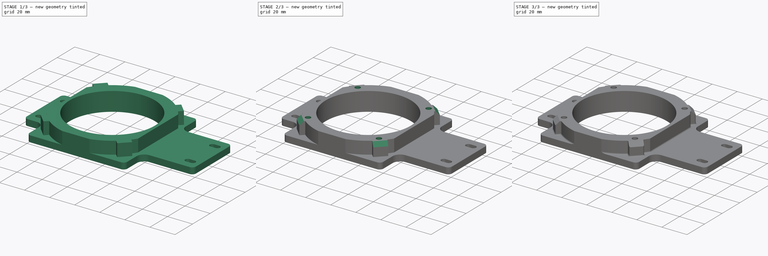
[diagram: build sequence overview — one tinted view per stage of 3, left to right]
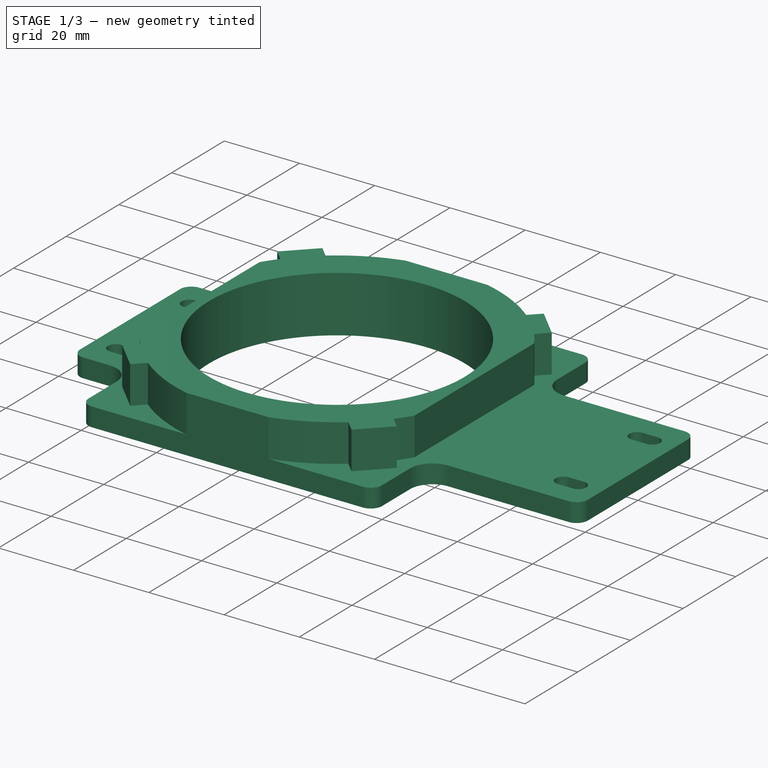
[diagram: stage 1 of 3 — iso view after this stage's code; geometry added in this stage tinted green]
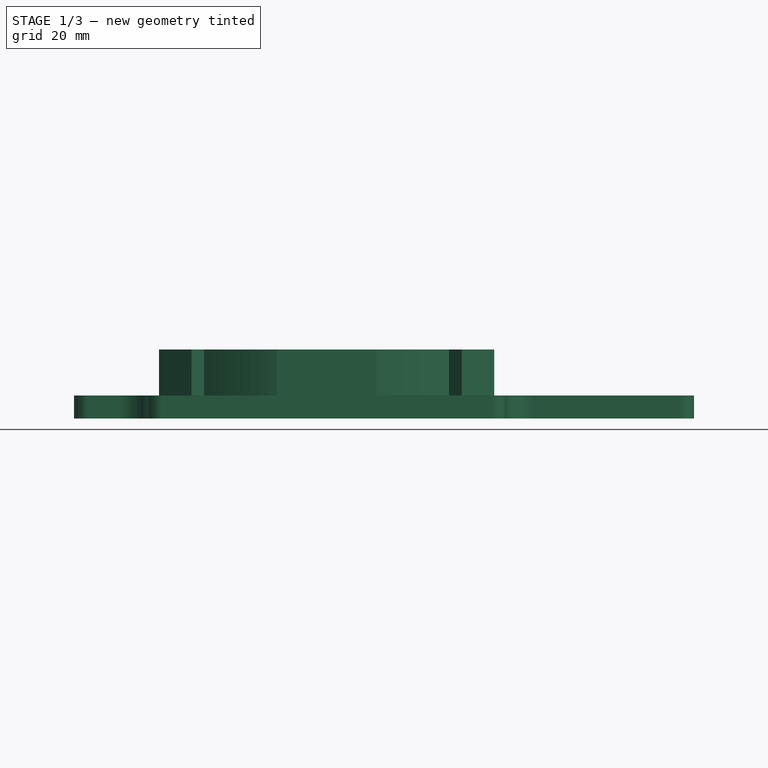
[diagram: stage 1 of 3 — front view after this stage's code; geometry added in this stage tinted green]
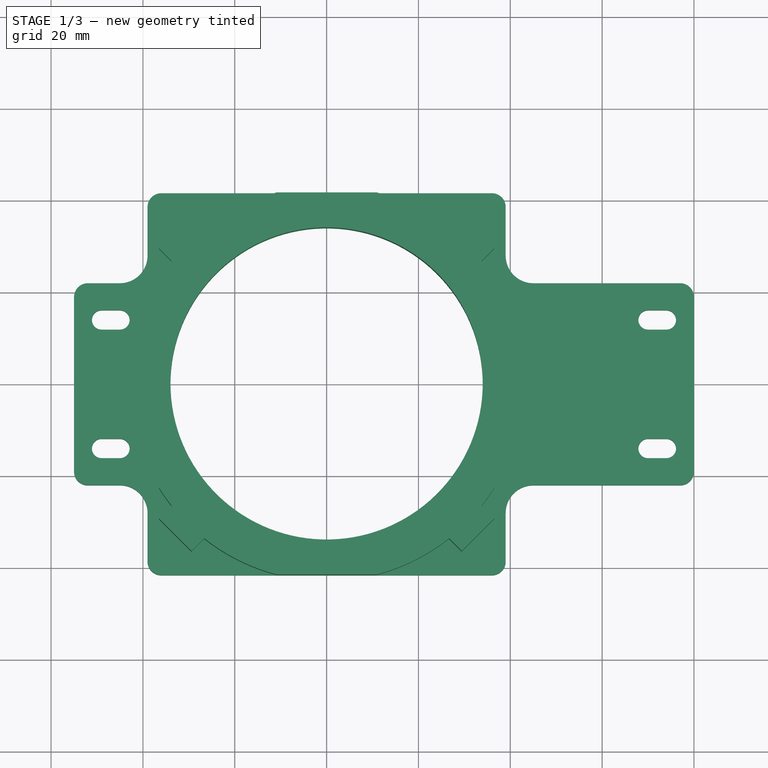
[diagram: stage 1 of 3 — top view after this stage's code; geometry added in this stage tinted green]
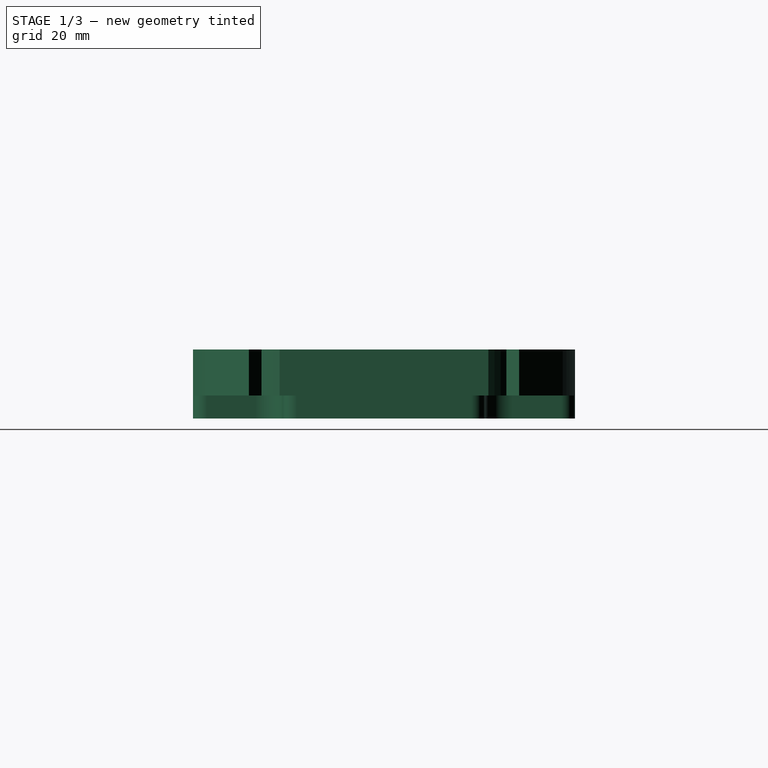
[diagram: stage 1 of 3 — right view after this stage's code; geometry added in this stage tinted green]
FCSTD DOCUMENT  (FreeCAD 0.17R5235 (Git shallow))
Label: C1010-3
License: CreativeCommons Attribution-ShareAlike
LicenseURL: http://creativecommons.org/licenses/by-sa/4.0/
objects: Sketcher::SketchObject×4, PartDesign::Pad×2, PartDesign::Pocket×2, PartDesign::Fillet×2, PartDesign::Chamfer×1, PartDesign::Plane×1, PartDesign::Body×1
note: 17 computed .brp shape members not serialized (recipe doc carries the construction recipe); baked Part::Feature solids carry a one-line shape summary decoded from their .brp

FEATURE [Sketcher::SketchObject] Sketch
  LastGeoID = 69
  MapMode = 5
  Support = -> [XY_Plane]
  sketch-geometry (61):
    g0: LineSegment StartX=-36 StartY=-41.6 StartZ=0 EndX=36 EndY=-41.6 EndZ=0
    g1: LineSegment StartX=45 StartY=-22 StartZ=0 EndX=77 EndY=-22 EndZ=0
    g2: LineSegment StartX=80 StartY=-19 StartZ=0 EndX=80 EndY=19 EndZ=0
    g3: LineSegment StartX=36 StartY=41.6 StartZ=0 EndX=-36 EndY=41.6 EndZ=0
    g4: LineSegment StartX=-55 StartY=-19 StartZ=0 EndX=-55 EndY=19 EndZ=0
    g5: Circle CenterX=0 CenterY=0 CenterZ=0 NormalX=0 NormalY=0 NormalZ=1 AngleXU=0 Radius=34
    g6: ArcOfCircle CenterX=45 CenterY=28 CenterZ=0 NormalX=0 NormalY=0 NormalZ=1 AngleXU=0 Radius=6 StartAngle=3.14159 EndAngle=4.71239
    g7: ArcOfCircle CenterX=36 CenterY=38.6 CenterZ=0 NormalX=0 NormalY=0 NormalZ=1 AngleXU=0 Radius=3 StartAngle=0 EndAngle=1.5708
    g8: LineSegment StartX=39 StartY=38.6 StartZ=0 EndX=39 EndY=28 EndZ=0
    g9: LineSegment StartX=45 StartY=22 StartZ=0 EndX=77 EndY=22 EndZ=0
    g10: ArcOfCircle CenterX=77 CenterY=19 CenterZ=0 NormalX=0 NormalY=0 NormalZ=1 AngleXU=0 Radius=3 StartAngle=0 EndAngle=1.5708
    g11: ArcOfCircle CenterX=77 CenterY=-19 CenterZ=0 NormalX=0 NormalY=0 NormalZ=1 AngleXU=0 Radius=3 StartAngle=4.71239 EndAngle=6.28319
    g12: LineSegment StartX=39 StartY=-28 StartZ=0 EndX=39 EndY=-38.6 EndZ=0
    g13: ArcOfCircle CenterX=45 CenterY=-28 CenterZ=0 NormalX=0 NormalY=0 NormalZ=1 AngleXU=0 Radius=6 StartAngle=1.5708 EndAngle=3.14159
    g14: ArcOfCircle CenterX=36 CenterY=-38.6 CenterZ=0 NormalX=0 NormalY=0 NormalZ=1 AngleXU=0 Radius=3 StartAngle=4.71239 EndAngle=6.28319
    g15: LineSegment StartX=-39 StartY=-38.6 StartZ=0 EndX=-39 EndY=-28 EndZ=0
    g16: LineSegment StartX=-52 StartY=-22 StartZ=0 EndX=-45 EndY=-22 EndZ=0
    g17: LineSegment StartX=-52 StartY=22 StartZ=0 EndX=-45 EndY=22 EndZ=0
    g18: LineSegment StartX=-39 StartY=38.6 StartZ=0 EndX=-39 EndY=28 EndZ=0
    g19: ArcOfCircle CenterX=-45 CenterY=28 CenterZ=0 NormalX=0 NormalY=0 NormalZ=1 AngleXU=0 Radius=6 StartAngle=4.71239 EndAngle=6.28319
    g20: ArcOfCircle CenterX=-52 CenterY=19 CenterZ=0 NormalX=0 NormalY=0 NormalZ=1 AngleXU=0 Radius=3 StartAngle=1.5708 EndAngle=3.14159
    g21: ArcOfCircle CenterX=-52 CenterY=-19 CenterZ=0 NormalX=0 NormalY=0 NormalZ=1 AngleXU=0 Radius=3 StartAngle=3.14159 EndAngle=4.71239
    g22: ArcOfCircle CenterX=-45 CenterY=-28 CenterZ=0 NormalX=0 NormalY=0 NormalZ=1 AngleXU=0 Radius=6 StartAngle=0 EndAngle=1.5708
    g23: ArcOfCircle CenterX=-36 CenterY=-38.6 CenterZ=0 NormalX=0 NormalY=0 NormalZ=1 AngleXU=0 Radius=3 StartAngle=3.14159 EndAngle=4.71239
    g24: ArcOfCircle CenterX=-36 CenterY=38.6 CenterZ=0 NormalX=0 NormalY=0 NormalZ=1 AngleXU=0 Radius=3 StartAngle=1.5708 EndAngle=3.14159
    g25: Circle [constr] CenterX=0 CenterY=0 CenterZ=0 NormalX=0 NormalY=0 NormalZ=1 AngleXU=0 Radius=37.5
    g26: LineSegment [constr] StartX=37.5 StartY=18 StartZ=0 EndX=57 EndY=18 EndZ=0
    g27: LineSegment [constr] StartX=57 StartY=18 StartZ=0 EndX=57 EndY=-18 EndZ=0
    g28: LineSegment [constr] StartX=57 StartY=-18 StartZ=0 EndX=37.5 EndY=-18 EndZ=0
    g29: LineSegment [constr] StartX=37.5 StartY=-18 StartZ=0 EndX=37.5 EndY=18 EndZ=0
    g30: LineSegment [constr] StartX=47.25 StartY=18 StartZ=0 EndX=47.25 EndY=-18 EndZ=0
    g31: LineSegment [constr] StartX=-38.25 StartY=58.4 StartZ=0 EndX=61.75 EndY=58.4 EndZ=0
    g32: LineSegment [constr] StartX=61.75 StartY=58.4 StartZ=0 EndX=61.75 EndY=-41.6 EndZ=0
    g33: LineSegment [constr] StartX=61.75 StartY=-41.6 StartZ=0 EndX=-38.25 EndY=-41.6 EndZ=0
    g34: LineSegment [constr] StartX=-38.25 StartY=-41.6 StartZ=0 EndX=-38.25 EndY=58.4 EndZ=0
    g35: LineSegment [constr] StartX=61.75 StartY=58.4 StartZ=0 EndX=81.75 EndY=58.4 EndZ=0
    g36: LineSegment [constr] StartX=81.75 StartY=58.4 StartZ=0 EndX=81.75 EndY=-41.6 EndZ=0
    g37: LineSegment [constr] StartX=81.75 StartY=-41.6 StartZ=0 EndX=61.75 EndY=-41.6 EndZ=0
    g38: LineSegment [constr] StartX=61.75 StartY=-41.6 StartZ=0 EndX=61.75 EndY=58.4 EndZ=0
    g39: LineSegment [constr] StartX=-38.25 StartY=58.4 StartZ=0 EndX=-58.25 EndY=58.4 EndZ=0
    g40: LineSegment [constr] StartX=-58.25 StartY=58.4 StartZ=0 EndX=-58.25 EndY=-41.6 EndZ=0
    g41: LineSegment [constr] StartX=-58.25 StartY=-41.6 StartZ=0 EndX=-38.25 EndY=-41.6 EndZ=0
    g42: LineSegment [constr] StartX=-38.25 StartY=-41.6 StartZ=0 EndX=-38.25 EndY=58.4 EndZ=0
    g43: LineSegment [constr] StartX=-48.25 StartY=58.4 StartZ=0 EndX=-48.25 EndY=-41.6 EndZ=0
    g44: LineSegment [constr] StartX=71.75 StartY=58.4 StartZ=0 EndX=71.75 EndY=-41.6 EndZ=0
    g45: ArcOfCircle CenterX=74 CenterY=14 CenterZ=0 NormalX=0 NormalY=0 NormalZ=1 AngleXU=0 Radius=2.1 StartAngle=4.71239 EndAngle=7.85398
    g46: ArcOfCircle CenterX=70 CenterY=14 CenterZ=0 NormalX=0 NormalY=0 NormalZ=1 AngleXU=0 Radius=2.1 StartAngle=1.5708 EndAngle=4.71239
    g47: LineSegment StartX=74 StartY=16.1 StartZ=0 EndX=70 EndY=16.1 EndZ=0
    g48: LineSegment StartX=74 StartY=11.9 StartZ=0 EndX=70 EndY=11.9 EndZ=0
    g49: ArcOfCircle CenterX=74 CenterY=-14 CenterZ=0 NormalX=0 NormalY=0 NormalZ=1 AngleXU=0 Radius=2.1 StartAngle=4.71239 EndAngle=7.85398
    g50: ArcOfCircle CenterX=70 CenterY=-14 CenterZ=0 NormalX=0 NormalY=0 NormalZ=1 AngleXU=0 Radius=2.1 StartAngle=1.5708 EndAngle=4.71239
    g51: LineSegment StartX=74 StartY=-11.9 StartZ=0 EndX=70 EndY=-11.9 EndZ=0
    g52: LineSegment StartX=74 StartY=-16.1 StartZ=0 EndX=70 EndY=-16.1 EndZ=0
    g53: ArcOfCircle CenterX=-49 CenterY=14 CenterZ=0 NormalX=0 NormalY=0 NormalZ=1 AngleXU=0 Radius=2.1 StartAngle=1.5708 EndAngle=4.71239
    g54: ArcOfCircle CenterX=-45 CenterY=14 CenterZ=0 NormalX=0 NormalY=0 NormalZ=1 AngleXU=0 Radius=2.1 StartAngle=4.71239 EndAngle=7.85398
    g55: LineSegment StartX=-49 StartY=11.9 StartZ=0 EndX=-45 EndY=11.9 EndZ=0
    g56: LineSegment StartX=-49 StartY=16.1 StartZ=0 EndX=-45 EndY=16.1 EndZ=0
    g57: ArcOfCircle CenterX=-49 CenterY=-14 CenterZ=0 NormalX=0 NormalY=0 NormalZ=1 AngleXU=0 Radius=2.1 StartAngle=1.5708 EndAngle=4.71239
    g58: ArcOfCircle CenterX=-45 CenterY=-14 CenterZ=0 NormalX=0 NormalY=0 NormalZ=1 AngleXU=0 Radius=2.1 StartAngle=4.71239 EndAngle=7.85398
    g59: LineSegment StartX=-49 StartY=-16.1 StartZ=0 EndX=-45 EndY=-16.1 EndZ=0
    g60: LineSegment StartX=-49 StartY=-11.9 StartZ=0 EndX=-45 EndY=-11.9 EndZ=0
  constraints (159):
    c: Horizontal(g0)
    c: Horizontal(g1)
    c: Vertical(g2)
    c: Vertical(g4)
    c: Coincident(g5,g-1)
    c: Radius(g5) = 34
    c: Equal(g2,g4)
    c: Tangent(g3,g7) = -1.5708
    c: Horizontal(g9)
    c: Tangent(g1,g11) = -1.5708
    c: Tangent(g2,g11) = -1.5708
    c: Vertical(g12)
    c: Tangent(g1,g13) = 1.5708
    c: Tangent(g12,g13) = -1.5708
    c: Tangent(g0,g14) = -1.5708
    c: Tangent(g12,g14) = 1.5708
    c: Horizontal(g16)
    c: Vertical(g18)
    c: Horizontal(g17)
    c: Tangent(g17,g19) = -1.5708
    c: Tangent(g18,g19) = 1.5708
    c: Tangent(g4,g20) = 1.5708
    c: Tangent(g17,g20) = 1.5708
    c: Vertical(g15)
    c: Tangent(g4,g21) = 1.5708
    c: Tangent(g16,g21) = -1.5708
    c: Tangent(g16,g22) = 1.5708
    c: Tangent(g15,g22) = -1.5708
    c: Tangent(g0,g23) = -1.5708
    c: Tangent(g15,g23) = 1.5708
    c: Tangent(g3,g24) = -1.5708
    c: Tangent(g18,g24) = -1.5708
    c: Tangent(g7,g8) = 1.5708
    c: Vertical(g8)
    c: Tangent(g8,g6) = -1.5708
    c: Tangent(g6,g9) = -1.5708
    c: Tangent(g10,g9) = 1.5708
    c: Tangent(g10,g2) = -1.5708
    c: Equal(g11,g10)
    c: Equal(g10,g20)
    c: Equal(g20,g21)
    c: Equal(g21,g24)
    c: Equal(g24,g7)
    c: Equal(g7,g14)
    c: Equal(g14,g23)
    c: Horizontal(g3)
    c: Radius(g21) = 3
    c: Equal(g22,g19)
    c: Equal(g19,g6)
    c: Radius(g6) = 6
    c: DistanceX(g4,g2) = 135
    c: Symmetric(g3,g0,g-1)
    c: Equal(g16,g17)
    c: PointOnObject(g6,g17)
    c: Symmetric(g1,g6,g-1)
    c: Symmetric(g15,g12,g-2)
    c: DistanceY(g16,g17) = 44
    c: Radius(g25) = 37.5
    c: Coincident(g26,g27)
    c: Coincident(g27,g28)
    c: Coincident(g28,g29)
    c: Coincident(g29,g26)
    c: Horizontal(g26)
    c: Horizontal(g28)
    c: Vertical(g27)
    c: Vertical(g29)
    c: Coincident(g25,g-1)
    c: DistanceX(g28,g27) = 19.5
    c: DistanceY(g27,g27) = 36
    c: Symmetric(g26,g27,g-1)
    c: PointOnObject(g30,g26)
    c: Vertical(g30)
    c: PointOnObject(g30,g28)
    c: Symmetric(g26,g26,g30)
    c: Coincident(g31,g32)
    c: Coincident(g32,g33)
    c: Coincident(g33,g34)
    c: Coincident(g34,g31)
    c: Horizontal(g31)
    c: Horizontal(g33)
    c: Vertical(g32)
    c: Vertical(g34)
    c: DistanceX(g33,g33) = 100
    c: DistanceX(g30,g32) = 14.5
    c: PointOnObject(g33,g0)
    c: Equal(g34,g31)
    c: Coincident(g35,g36)
    c: Coincident(g36,g37)
    c: Coincident(g37,g38)
    c: Coincident(g38,g35)
    c: Horizontal(g35)
    c: Horizontal(g37)
    c: Vertical(g36)
    c: Vertical(g38)
    c: Coincident(g35,g31)
    c: Coincident(g37,g32)
    c: DistanceX(g35,g35) = 20
    c: Coincident(g39,g40)
    c: Coincident(g40,g41)
    c: Coincident(g41,g42)
    c: Coincident(g42,g39)
    c: Horizontal(g39)
    c: Horizontal(g41)
    c: Vertical(g40)
    c: Vertical(g42)
    c: Coincident(g39,g31)
    c: Coincident(g41,g33)
    c: Equal(g39,g35)
    c: PointOnObject(g43,g39)
    c: Vertical(g43)
    c: PointOnObject(g43,g41)
    c: Symmetric(g33,g40,g43)
    c: PointOnObject(g44,g35)
    c: PointOnObject(g44,g37)
    c: Vertical(g44)
    c: Symmetric(g36,g32,g44)
    c: DistanceX(g15,g12) = 78
    c: DistanceX(g4,g-1) = 55
    c: Tangent(g45,g48) = 1.5708
    c: Tangent(g45,g47) = -1.5708
    c: Tangent(g47,g46) = -1.5708
    c: Tangent(g48,g46) = 1.5708
    c: Horizontal(g47)
    c: Equal(g45,g46)
    c: Tangent(g49,g52) = 1.5708
    c: Tangent(g49,g51) = -1.5708
    c: Tangent(g51,g50) = -1.5708
    c: Tangent(g52,g50) = 1.5708
    c: Horizontal(g51)
    c: Equal(g49,g50)
    c: Equal(g45,g49)
    c: Radius(g49) = 2.1
    c: Equal(g51,g48)
    c: DistanceX(g50,g49) = 4
    c: DistanceY(g45,g9) = 8
    c: Symmetric(g49,g45,g-1)
    c: DistanceX(g-1,g30) = 47.25
    c: DistanceX(g45,g2) = 6
    c: Tangent(g53,g56) = 1.5708
    c: Tangent(g53,g55) = -1.5708
    c: Tangent(g55,g54) = -1.5708
    c: Tangent(g56,g54) = 1.5708
    c: Horizontal(g55)
    c: Equal(g53,g54)
    c: Equal(g56,g51)
    c: Equal(g54,g49)
    c: PointOnObject(g46,g56)
    c: DistanceX(g4,g53) = 6
    c: Tangent(g57,g60) = 1.5708
    c: Tangent(g57,g59) = -1.5708
    c: Tangent(g59,g58) = -1.5708
    c: Tangent(g60,g58) = 1.5708
    c: Horizontal(g59)
    c: Equal(g57,g58)
    c: Equal(g58,g54)
    c: Equal(g60,g55)
    c: Vertical(g57,g53)
    c: PointOnObject(g50,g60)
    c: DistanceY(g36,g27) = 23.6
FEATURE [PartDesign::Pad] Pad
  ClaimChildren = false
  Length = 5
  Length2 = 100
  Profile = -> Sketch
  Reversed = true
  Type = 0
FEATURE [Sketcher::SketchObject] Sketch001
  ExternalGeometry = -> [Sketch]
  LastGeoID = 159
  MapMode = 5
  Support = -> [XY_Plane]
  sketch-geometry (29):
    g0: Circle CenterX=0 CenterY=0 CenterZ=0 NormalX=0 NormalY=0 NormalZ=1 AngleXU=0 Radius=34
    g1: LineSegment StartX=-36.5 StartY=22.7321 StartZ=0 EndX=-36.5 EndY=-22.7321 EndZ=0
    g2: LineSegment StartX=-10.883 StartY=-41.6 StartZ=0 EndX=10.883 EndY=-41.6 EndZ=0
    g3: LineSegment StartX=-36.5 StartY=-29.4289 StartZ=0 EndX=-33.7349 EndY=-26.6638 EndZ=0
    g4: LineSegment StartX=-36.5 StartY=-29.4289 StartZ=0 EndX=-29.4289 EndY=-36.5 EndZ=0
    g5: LineSegment StartX=-29.4289 StartY=-36.5 StartZ=0 EndX=-26.6638 EndY=-33.7349 EndZ=0
    g6: ArcOfCircle CenterX=0 CenterY=0 CenterZ=0 NormalX=0 NormalY=0 NormalZ=1 AngleXU=0 Radius=43 StartAngle=4.04353 EndAngle=4.45651
    g7: ArcOfCircle CenterX=0 CenterY=0 CenterZ=0 NormalX=0 NormalY=0 NormalZ=1 AngleXU=0 Radius=43 StartAngle=3.69861 EndAngle=3.81045
    g8: LineSegment [constr] StartX=0 StartY=0 StartZ=0 EndX=-32.9645 EndY=-32.9645 EndZ=0
    g9: LineSegment [constr] StartX=0 StartY=0 StartZ=0 EndX=32.9645 EndY=-32.9645 EndZ=0
    g10: LineSegment [constr] StartX=0 StartY=0 StartZ=0 EndX=32.9645 EndY=32.9645 EndZ=0
    g11: LineSegment [constr] StartX=0 StartY=0 StartZ=0 EndX=-32.9645 EndY=32.9645 EndZ=0
    g12: ArcOfCircle CenterX=0 CenterY=0 CenterZ=0 NormalX=0 NormalY=0 NormalZ=1 AngleXU=0 Radius=43 StartAngle=4.96827 EndAngle=5.38124
    g13: LineSegment StartX=26.6638 StartY=-33.7349 StartZ=0 EndX=29.4289 EndY=-36.5 EndZ=0
    g14: LineSegment StartX=29.4289 StartY=-36.5 StartZ=0 EndX=36.5 EndY=-29.4289 EndZ=0
    g15: LineSegment StartX=36.5 StartY=-29.4289 StartZ=0 EndX=33.7349 EndY=-26.6638 EndZ=0
    g16: ArcOfCircle CenterX=0 CenterY=0 CenterZ=0 NormalX=0 NormalY=0 NormalZ=1 AngleXU=0 Radius=43 StartAngle=5.61433 EndAngle=5.72617
    g17: LineSegment StartX=36.5 StartY=-22.7321 StartZ=0 EndX=36.5 EndY=22.7321 EndZ=0
    g18: ArcOfCircle CenterX=0 CenterY=0 CenterZ=0 NormalX=0 NormalY=0 NormalZ=1 AngleXU=0 Radius=43 StartAngle=0.557014 EndAngle=0.668855
    g19: LineSegment StartX=33.7349 StartY=26.6638 StartZ=0 EndX=36.5 EndY=29.4289 EndZ=0
    g20: LineSegment StartX=36.5 StartY=29.4289 StartZ=0 EndX=29.4289 EndY=36.5 EndZ=0
    g21: LineSegment StartX=29.4289 StartY=36.5 StartZ=0 EndX=26.6638 EndY=33.7349 EndZ=0
    g22: ArcOfCircle CenterX=0 CenterY=0 CenterZ=0 NormalX=0 NormalY=0 NormalZ=1 AngleXU=0 Radius=43 StartAngle=0.901941 EndAngle=1.31492
    g23: LineSegment StartX=10.883 StartY=41.6 StartZ=0 EndX=-10.883 EndY=41.6 EndZ=0
    g24: ArcOfCircle CenterX=0 CenterY=0 CenterZ=0 NormalX=0 NormalY=0 NormalZ=1 AngleXU=0 Radius=43 StartAngle=2.47274 EndAngle=2.58458
    g25: LineSegment StartX=-33.7349 StartY=26.6638 StartZ=0 EndX=-36.5 EndY=29.4289 EndZ=0
    g26: LineSegment StartX=-36.5 StartY=29.4289 StartZ=0 EndX=-29.4289 EndY=36.5 EndZ=0
    g27: LineSegment StartX=-29.4289 StartY=36.5 StartZ=0 EndX=-26.6638 EndY=33.7349 EndZ=0
    g28: ArcOfCircle CenterX=0 CenterY=0 CenterZ=0 NormalX=0 NormalY=0 NormalZ=1 AngleXU=0 Radius=43 StartAngle=1.82667 EndAngle=2.23965
  constraints (82):
    c: Coincident(g0,g-1)
    c: Radius(g0) = 34
    c: DistanceX(g1,g-1) = 36.5
    c: Coincident(g3,g4)
    c: Coincident(g4,g5)
    c: PointOnObject(g3,g1)
    c: Perpendicular(g3,g4)
    c: Parallel(g5,g3)
    c: Coincident(g6,g-1)
    c: Coincident(g7,g-1)
    c: Coincident(g7,g3)
    c: Coincident(g7,g1)
    c: Coincident(g5,g6)
    c: Equal(g6,g7)
    c: Coincident(g6,g2)
    c: Coincident(g8,g-1)
    c: PointOnObject(g8,g4)
    c: Symmetric(g4,g3,g8)
    c: Distance(g4) = 10
    c: Angle(g8,g-1) = 2.35619
    c: Symmetric(g1,g1,g-1)
    c: Symmetric(g2,g2,g-2)
    c: Coincident(g9,g-1)
    c: Coincident(g10,g-1)
    c: Coincident(g11,g-1)
    c: PointOnObject(g11,g9)
    c: PointOnObject(g10,g8)
    c: Perpendicular(g8,g9)
    c: Equal(g11,g8)
    c: Equal(g8,g9)
    c: Equal(g9,g10)
    c: PointOnObject(g2,g-4)
    c: Coincident(g12,g-1)
    c: Coincident(g12,g2)
    c: Coincident(g13,g12)
    c: Coincident(g13,g14)
    c: Coincident(g14,g15)
    c: PointOnObject(g9,g14)
    c: Perpendicular(g14,g13)
    c: Parallel(g15,g9)
    c: Parallel(g9,g13)
    c: Symmetric(g13,g14,g9)
    c: Equal(g14,g4)
    c: Coincident(g16,g-1)
    c: Coincident(g16,g15)
    c: Coincident(g17,g16)
    c: Vertical(g17)
    c: Equal(g7,g16)
    c: Symmetric(g1,g17,g-2)
    c: Coincident(g18,g-1)
    c: Coincident(g18,g17)
    c: Coincident(g18,g19)
    c: Coincident(g19,g20)
    c: Coincident(g20,g21)
    c: PointOnObject(g10,g20)
    c: Parallel(g10,g19)
    c: Parallel(g19,g21)
    c: Perpendicular(g20,g10)
    c: Equal(g20,g4)
    c: Coincident(g22,g-1)
    c: Coincident(g22,g21)
    c: PointOnObject(g22,g-3)
    c: Symmetric(g19,g20,g10)
    c: Equal(g6,g22)
    c: Coincident(g23,g22)
    c: Horizontal(g23)
    c: Coincident(g24,g-1)
    c: Coincident(g24,g1)
    c: Coincident(g24,g25)
    c: Coincident(g25,g26)
    c: Coincident(g26,g27)
    c: Coincident(g28,g-1)
    c: Coincident(g28,g27)
    c: Coincident(g28,g23)
    c: Parallel(g27,g11)
    c: Parallel(g11,g25)
    c: Perpendicular(g26,g11)
    c: Symmetric(g25,g26,g11)
    c: PointOnObject(g11,g26)
    c: Equal(g26,g4)
    c: Equal(g28,g6)
    c: Radius(g6) = 43
FEATURE [PartDesign::Pad] Pad001
  BaseFeature = -> Pad
  ClaimChildren = false
  Length = 10
  Length2 = 100
  Profile = -> Sketch001
  Type = 0
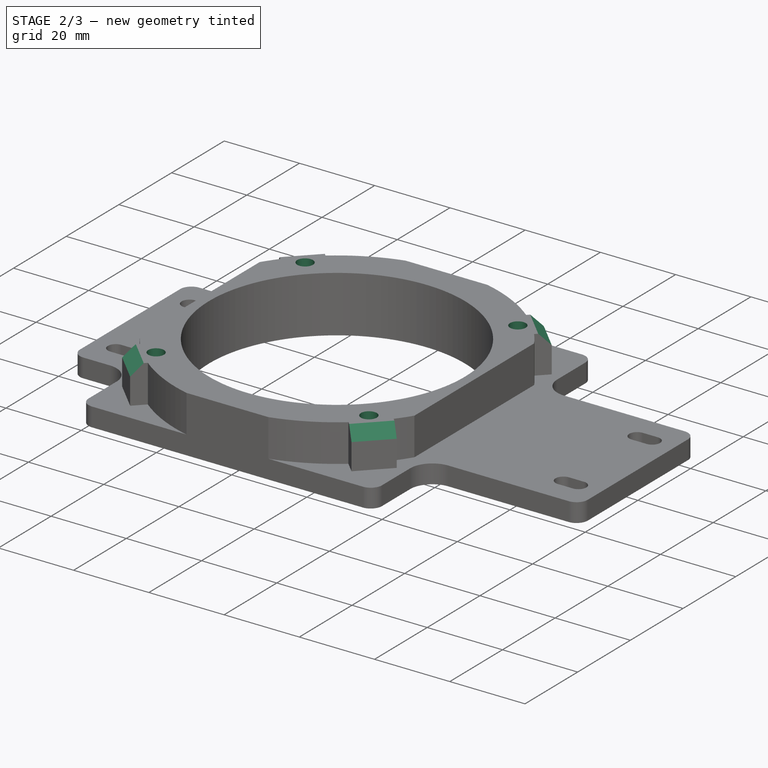
[diagram: stage 2 of 3 — iso view after this stage's code; geometry added in this stage tinted green]
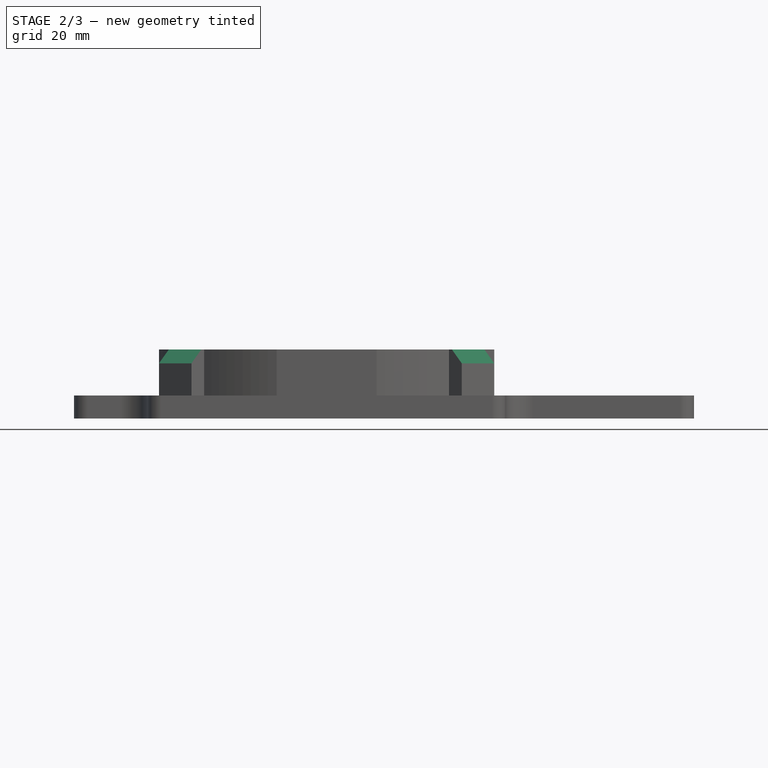
[diagram: stage 2 of 3 — front view after this stage's code; geometry added in this stage tinted green]
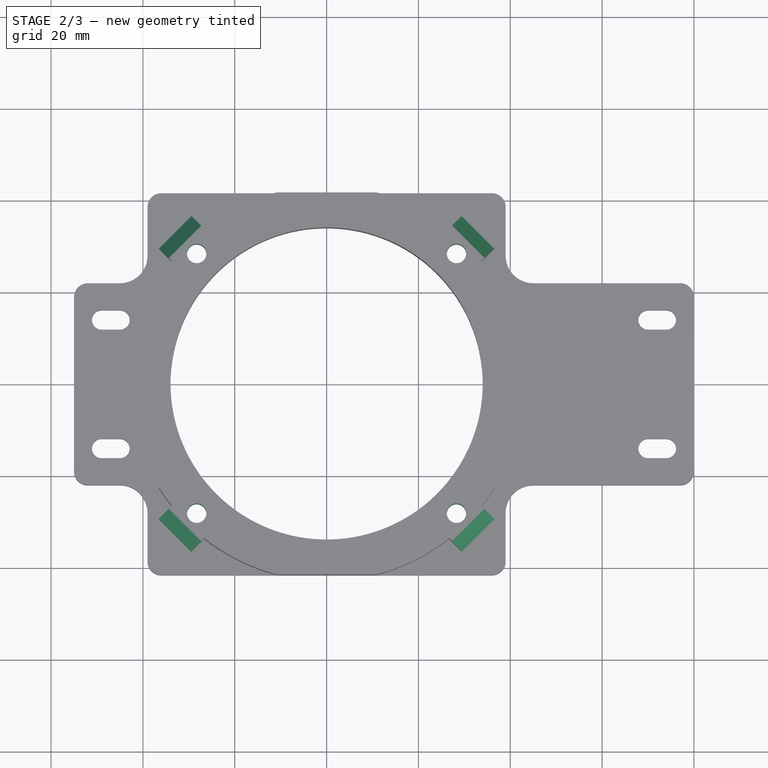
[diagram: stage 2 of 3 — top view after this stage's code; geometry added in this stage tinted green]
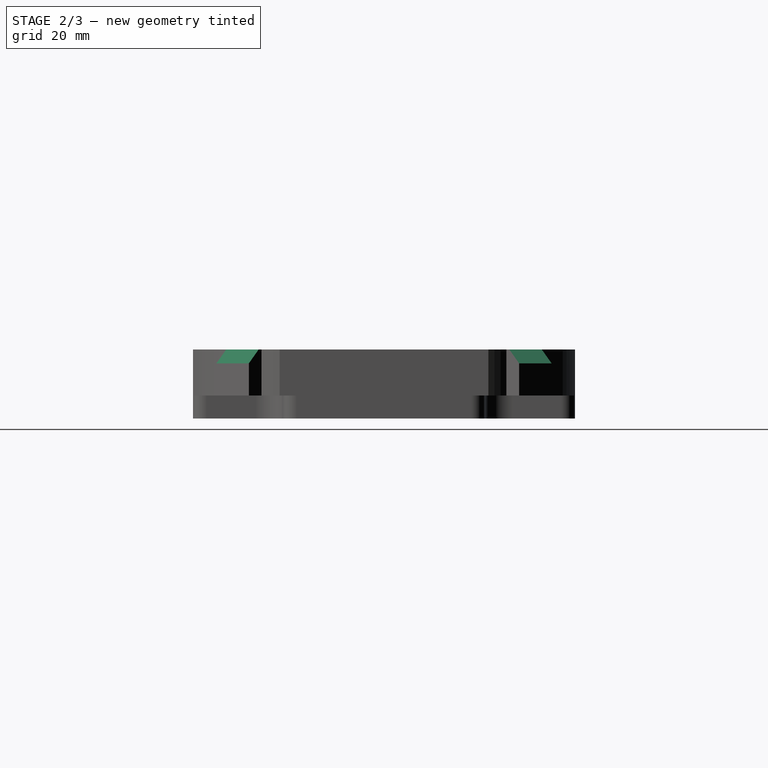
[diagram: stage 2 of 3 — right view after this stage's code; geometry added in this stage tinted green]
FEATURE [PartDesign::Chamfer] Chamfer
  Base = -> Pad001 [Edge183,Edge132,Edge143,Edge177]
  BaseFeature = -> Pad001
  Size = 3
FEATURE [Sketcher::SketchObject] Sketch002
  LastGeoID = 195
  MapMode = 5
  Support = -> [XY_Plane]
  sketch-geometry (7):
    g0: Circle CenterX=-28.2843 CenterY=28.2843 CenterZ=0 NormalX=0 NormalY=0 NormalZ=1 AngleXU=0 Radius=2.1
    g1: Circle CenterX=28.2843 CenterY=28.2843 CenterZ=0 NormalX=0 NormalY=0 NormalZ=1 AngleXU=0 Radius=2.1
    g2: Circle CenterX=28.2843 CenterY=-28.2843 CenterZ=0 NormalX=0 NormalY=0 NormalZ=1 AngleXU=0 Radius=2.1
    g3: Circle CenterX=-28.2843 CenterY=-28.2843 CenterZ=0 NormalX=0 NormalY=0 NormalZ=1 AngleXU=0 Radius=2.1
    g4: LineSegment [constr] StartX=-28.2843 StartY=-28.2843 StartZ=0 EndX=28.2843 EndY=28.2843 EndZ=0
    g5: LineSegment [constr] StartX=-28.2843 StartY=28.2843 StartZ=0 EndX=28.2843 EndY=-28.2843 EndZ=0
    g6: Circle [constr] CenterX=0 CenterY=0 CenterZ=0 NormalX=0 NormalY=0 NormalZ=1 AngleXU=0 Radius=40
  constraints (18):
    c: Coincident(g4,g3)
    c: Coincident(g4,g1)
    c: Coincident(g5,g2)
    c: Coincident(g5,g0)
    c: Equal(g1,g0)
    c: Equal(g0,g3)
    c: Equal(g3,g2)
    c: Radius(g1) = 2.1
    c: PointOnObject(g-1,g5)
    c: PointOnObject(g-1,g4)
    c: Coincident(g6,g-1)
    c: PointOnObject(g1,g6)
    c: PointOnObject(g0,g6)
    c: PointOnObject(g3,g6)
    c: PointOnObject(g2,g6)
    c: Perpendicular(g4,g5)
    c: Angle(g4,g-1) = 2.35619
    c: Radius(g6) = 40
FEATURE [PartDesign::Pocket] Pocket
  BaseFeature = -> Chamfer
  ClaimChildren = false
  Length = 5
  Length2 = 100
  Midplane = true
  Profile = -> Sketch002
  Type = 1
FEATURE [PartDesign::Plane] DatumPlane
  Length = 156.196
  MapMode = 5
  Placement = pos=(0,0,-5) rot=(1,0,0;3.14159rad)
  ResizeMode = 0
  Support = -> [Pocket]
  Width = 104.396
FEATURE [Sketcher::SketchObject] Sketch003
  ExternalGeometry = -> [Pocket]
  LastGeoID = 232
  MapMode = 5
  Placement = pos=(0,0,-5) rot=(1,0,0;3.14159rad)
  Support = -> [DatumPlane]
  sketch-geometry (30):
    g0: LineSegment StartX=-32.1322 StartY=-29.3153 StartZ=0 EndX=-29.3153 EndY=-32.1322 EndZ=0
    g1: LineSegment StartX=-29.3153 StartY=-32.1322 StartZ=0 EndX=-25.4674 EndY=-31.1012 EndZ=0
    g2: LineSegment StartX=-25.4674 StartY=-31.1012 StartZ=0 EndX=-24.4363 EndY=-27.2532 EndZ=0
    g3: LineSegment StartX=-24.4363 StartY=-27.2532 StartZ=0 EndX=-27.2532 EndY=-24.4363 EndZ=0
    g4: LineSegment StartX=-27.2532 StartY=-24.4363 StartZ=0 EndX=-31.1012 EndY=-25.4674 EndZ=0
    g5: LineSegment StartX=-31.1012 StartY=-25.4674 StartZ=0 EndX=-32.1322 EndY=-29.3153 EndZ=0
    g6: Circle [constr] CenterX=-28.2843 CenterY=-28.2843 CenterZ=0 NormalX=0 NormalY=0 NormalZ=1 AngleXU=0 Radius=3.98372
    g7: LineSegment StartX=25.4674 StartY=-31.1012 StartZ=0 EndX=29.3153 EndY=-32.1322 EndZ=0
    g8: LineSegment StartX=29.3153 StartY=-32.1322 StartZ=0 EndX=32.1322 EndY=-29.3153 EndZ=0
    g9: LineSegment StartX=32.1322 StartY=-29.3153 StartZ=0 EndX=31.1012 EndY=-25.4674 EndZ=0
    g10: LineSegment StartX=31.1012 StartY=-25.4674 StartZ=0 EndX=27.2532 EndY=-24.4363 EndZ=0
    g11: LineSegment StartX=27.2532 StartY=-24.4363 StartZ=0 EndX=24.4363 EndY=-27.2532 EndZ=0
    g12: LineSegment StartX=24.4363 StartY=-27.2532 StartZ=0 EndX=25.4674 EndY=-31.1012 EndZ=0
    g13: Circle [constr] CenterX=28.2843 CenterY=-28.2843 CenterZ=0 NormalX=0 NormalY=0 NormalZ=1 AngleXU=0 Radius=3.98372
    g14: LineSegment [constr] StartX=-28.2843 StartY=28.2843 StartZ=0 EndX=28.2843 EndY=-28.2843 EndZ=0
    g15: LineSegment [constr] StartX=-28.2843 StartY=-28.2843 StartZ=0 EndX=28.2843 EndY=28.2843 EndZ=0
    g16: LineSegment StartX=-25.4674 StartY=31.1012 StartZ=0 EndX=-29.3153 EndY=32.1322 EndZ=0
    g17: LineSegment StartX=-29.3153 StartY=32.1322 StartZ=0 EndX=-32.1322 EndY=29.3153 EndZ=0
    g18: LineSegment StartX=-32.1322 StartY=29.3153 StartZ=0 EndX=-31.1012 EndY=25.4674 EndZ=0
    g19: LineSegment StartX=-31.1012 StartY=25.4674 StartZ=0 EndX=-27.2532 EndY=24.4363 EndZ=0
    g20: LineSegment StartX=-27.2532 StartY=24.4363 StartZ=0 EndX=-24.4363 EndY=27.2532 EndZ=0
    g21: LineSegment StartX=-24.4363 StartY=27.2532 StartZ=0 EndX=-25.4674 EndY=31.1012 EndZ=0
    g22: Circle [constr] CenterX=-28.2843 CenterY=28.2843 CenterZ=0 NormalX=0 NormalY=0 NormalZ=1 AngleXU=0 Radius=3.98372
    g23: LineSegment StartX=32.1322 StartY=29.3153 StartZ=0 EndX=29.3153 EndY=32.1322 EndZ=0
    g24: LineSegment StartX=29.3153 StartY=32.1322 StartZ=0 EndX=25.4674 EndY=31.1012 EndZ=0
    g25: LineSegment StartX=25.4674 StartY=31.1012 StartZ=0 EndX=24.4363 EndY=27.2532 EndZ=0
    g26: LineSegment StartX=24.4363 StartY=27.2532 StartZ=0 EndX=27.2532 EndY=24.4363 EndZ=0
    g27: LineSegment StartX=27.2532 StartY=24.4363 StartZ=0 EndX=31.1012 EndY=25.4674 EndZ=0
    g28: LineSegment StartX=31.1012 StartY=25.4674 StartZ=0 EndX=32.1322 EndY=29.3153 EndZ=0
    g29: Circle [constr] CenterX=28.2843 CenterY=28.2843 CenterZ=0 NormalX=0 NormalY=0 NormalZ=1 AngleXU=0 Radius=3.98372
  constraints (64):
    c: Coincident(g0,g1)
    c: Coincident(g1,g2)
    c: Coincident(g2,g3)
    c: Coincident(g3,g4)
    c: Coincident(g4,g5)
    c: Coincident(g5,g0)
    c: Equal(g0, g1-g5) x5
    c: PointOnObject(g0,g6)
    c: PointOnObject(g1,g6)
    c: PointOnObject(g2,g6)
    c: PointOnObject(g3,g6)
    c: PointOnObject(g4,g6)
    c: PointOnObject(g5,g6)
    c: Coincident(g7,g8)
    c: Coincident(g8,g9)
    c: Coincident(g9,g10)
    c: Coincident(g10,g11)
    c: Coincident(g11,g12)
    c: Coincident(g12,g7)
    c: Equal(g7, g8-g12) x5
    c: PointOnObject(g7,g13)
    c: PointOnObject(g8,g13)
    c: PointOnObject(g9,g13)
    c: PointOnObject(g10,g13)
    c: PointOnObject(g11,g13)
    c: PointOnObject(g12,g13)
    c: Distance(g8,g11) = 6.9
    c: Coincident(g14,g13)
    c: Perpendicular(g11,g14)
    c: Coincident(g15,g6)
    c: Perpendicular(g3,g15)
    c: Equal(g6,g13)
    c: Coincident(g16,g17)
    c: Coincident(g17,g18)
    c: Coincident(g18,g19)
    c: Coincident(g19,g20)
    c: Coincident(g20,g21)
    c: Coincident(g21,g16)
    c: Equal(g16, g17-g21) x5
    c: PointOnObject(g16,g22)
    c: PointOnObject(g17,g22)
    c: PointOnObject(g18,g22)
    c: PointOnObject(g19,g22)
    c: PointOnObject(g20,g22)
    c: PointOnObject(g21,g22)
    c: Coincident(g22,g14)
    c: Coincident(g23,g24)
    c: Coincident(g24,g25)
    c: Coincident(g25,g26)
    c: Coincident(g26,g27)
    c: Coincident(g27,g28)
    c: Coincident(g28,g23)
    c: Equal(g23, g24-g28) x5
    c: PointOnObject(g23,g29)
    c: PointOnObject(g24,g29)
    c: PointOnObject(g25,g29)
    c: PointOnObject(g26,g29)
    c: PointOnObject(g27,g29)
    c: PointOnObject(g28,g29)
    c: Coincident(g29,g15)
    c: Equal(g22,g29)
    c: Equal(g29,g13)
    c: Perpendicular(g15,g26)
    c: Perpendicular(g14,g20)
FEATURE [PartDesign::Pocket] Pocket001
  BaseFeature = -> Pocket
  ClaimChildren = false
  Length = 5
  Length2 = 100
  Profile = -> Sketch003
  Type = 0
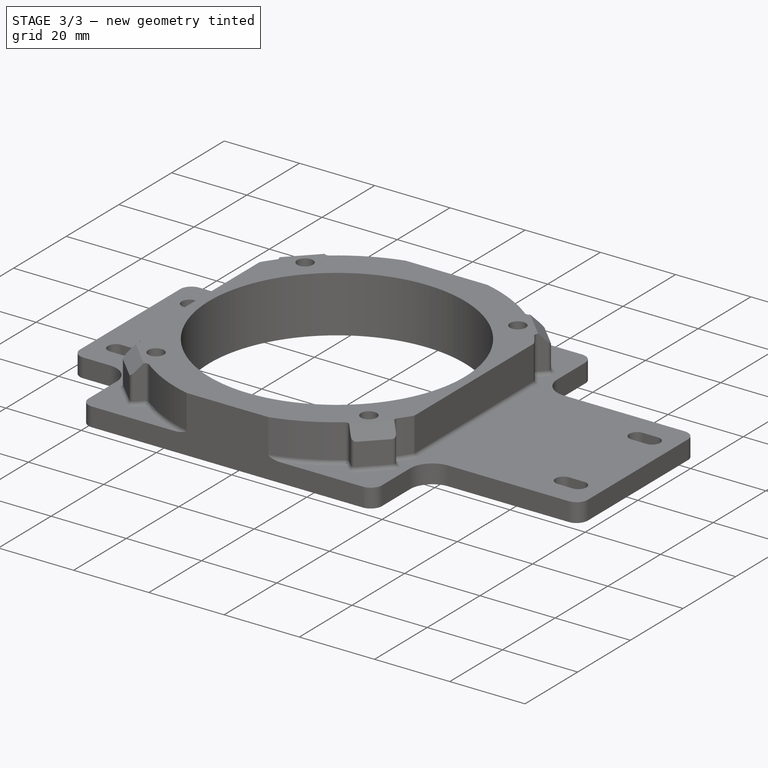
[diagram: stage 3 of 3 — iso view after this stage's code; geometry added in this stage tinted green]
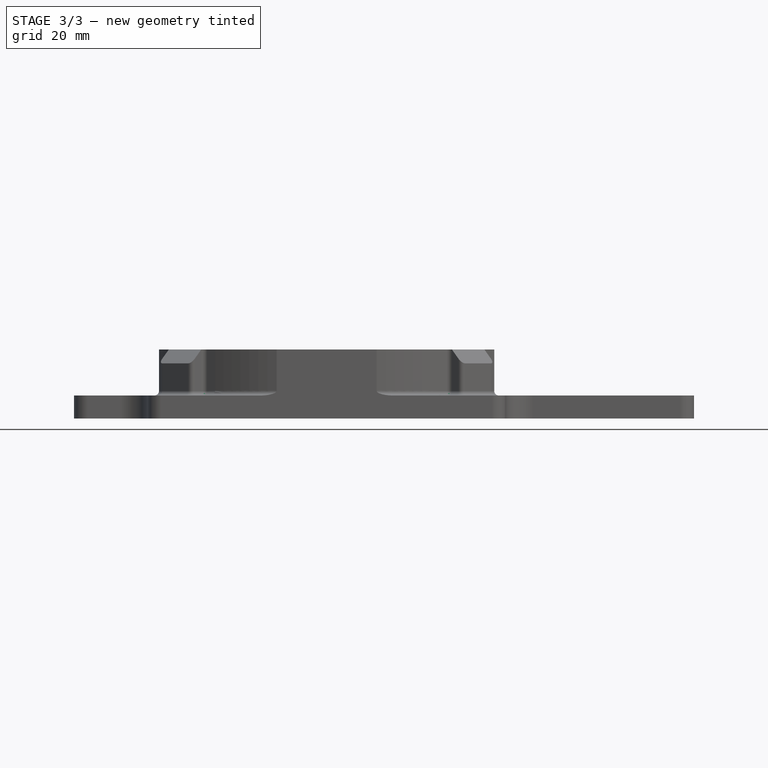
[diagram: stage 3 of 3 — front view after this stage's code; geometry added in this stage tinted green]
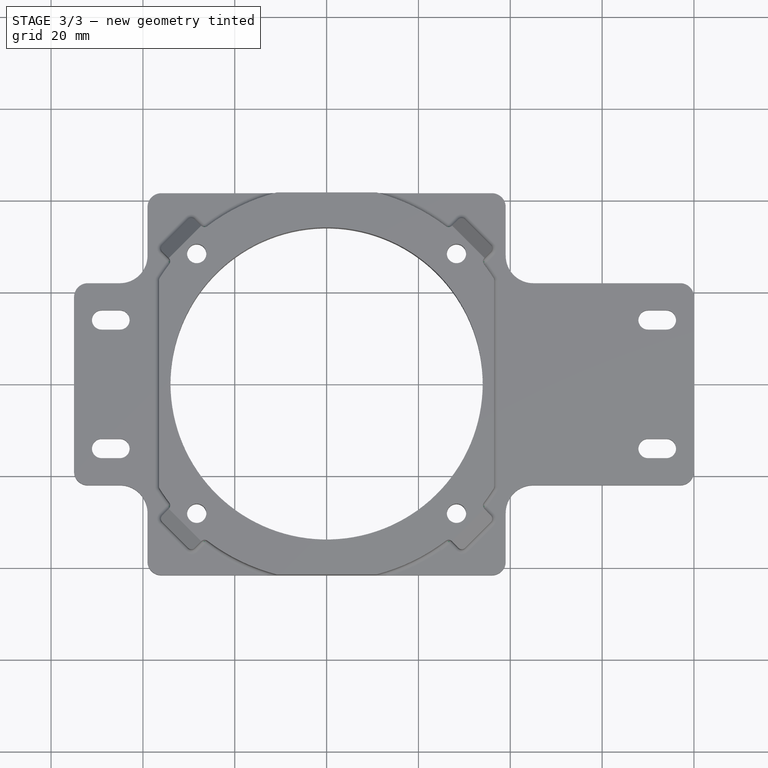
[diagram: stage 3 of 3 — top view after this stage's code; geometry added in this stage tinted green]
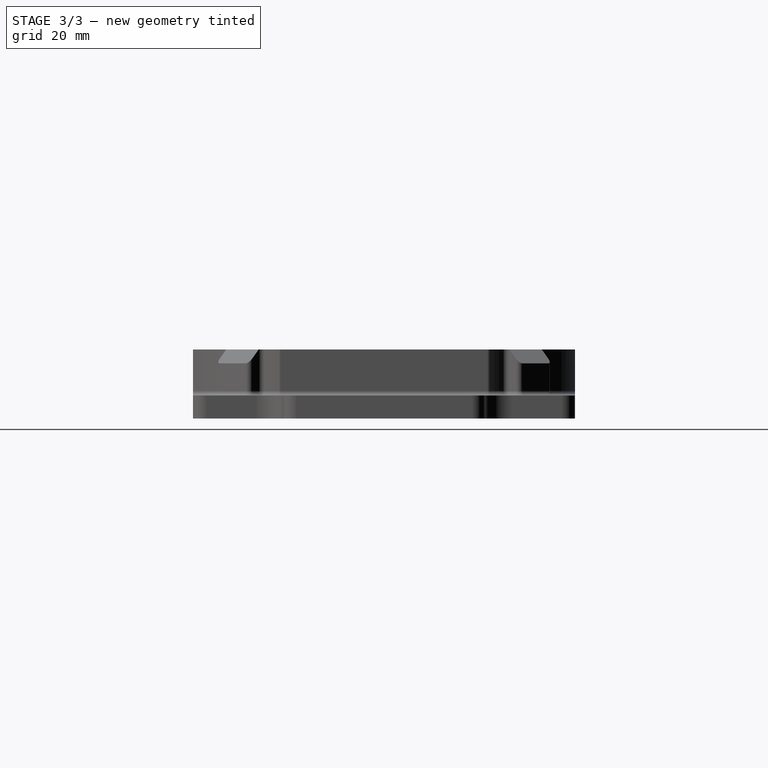
[diagram: stage 3 of 3 — right view after this stage's code; geometry added in this stage tinted green]
FEATURE [PartDesign::Fillet] Fillet
  Base = -> Pocket001 [Edge103,Edge101,Edge129,Edge131,Edge135,Edge141,Edge145,Edge152,Edge5,Edge1,Edge6,Edge98]
  BaseFeature = -> Pocket001
  Radius = 1
FEATURE [PartDesign::Fillet] Fillet001
  Base = -> Fillet [Edge112,Edge119,Edge82,Edge94,Edge195,Edge113,Edge118,Edge206,Edge49,Edge55,Edge59,Edge65,Edge116,Edge114,Edge115,Edge100,Edge97,Edge57]
  BaseFeature = -> Fillet
  Radius = 1
FEATURE [PartDesign::Body] Body
  Group = -> [Sketch,Pad,Sketch001,Pad001,Chamfer,Sketch002,Pocket,DatumPlane,Sketch003,Pocket001,Fillet,Fillet001]
  Origin = -> Origin
  Tip = -> Fillet001
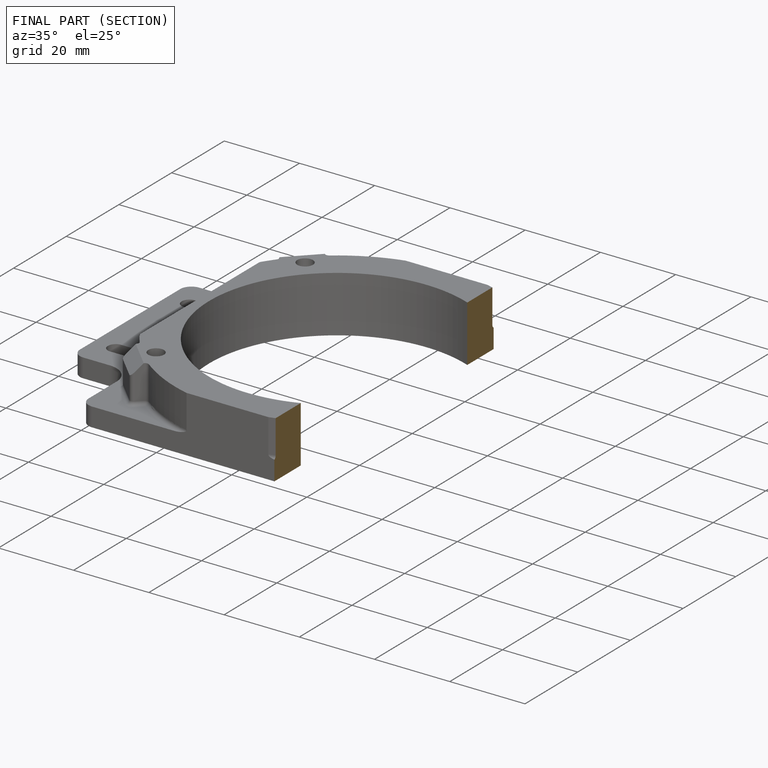
[diagram: finished part — half-section view (interior)]
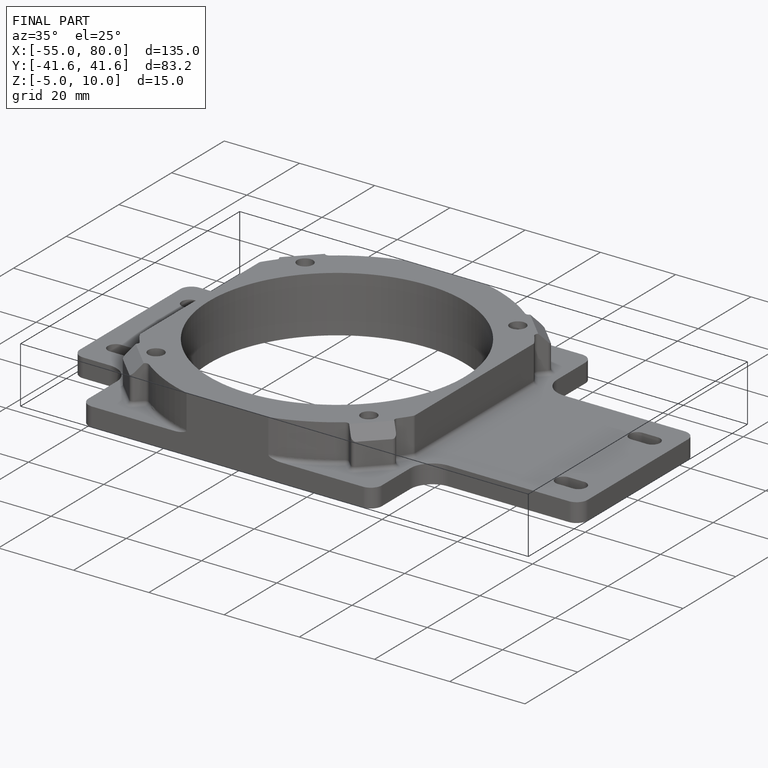
[diagram: finished part — iso view with bounding-box wireframe]
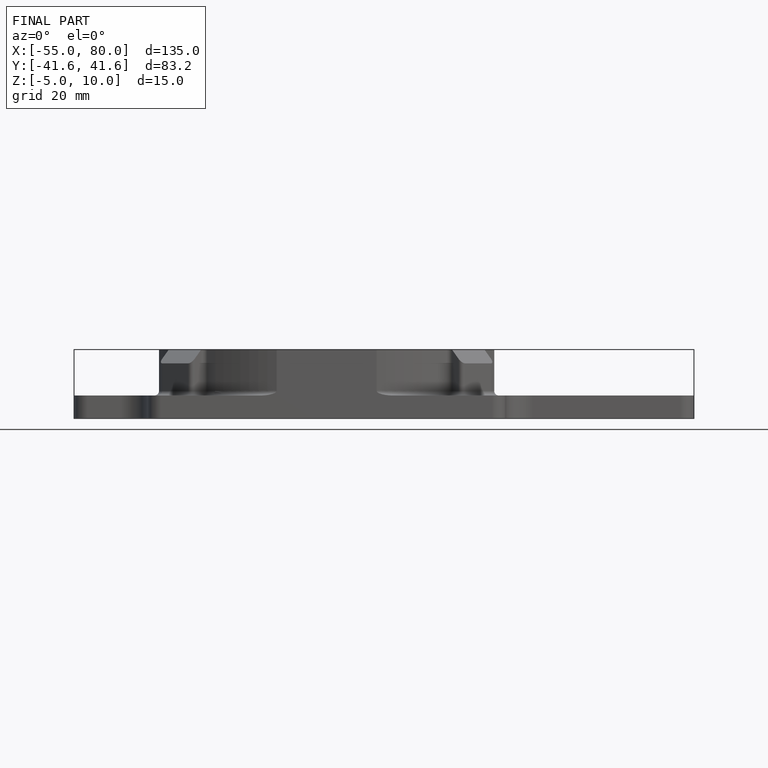
[diagram: finished part — front view with bounding-box wireframe]
